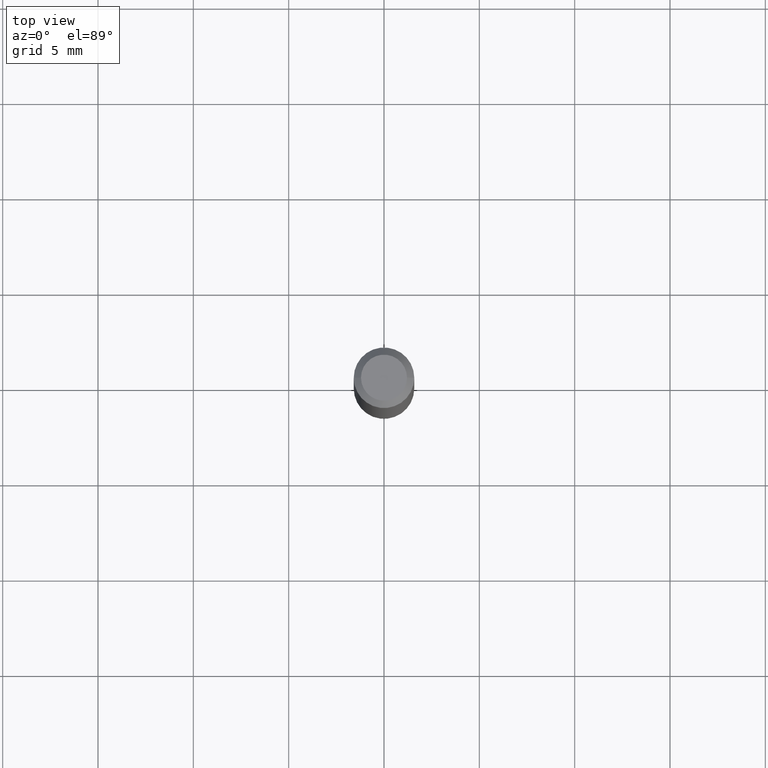
[diagram: clean part render]
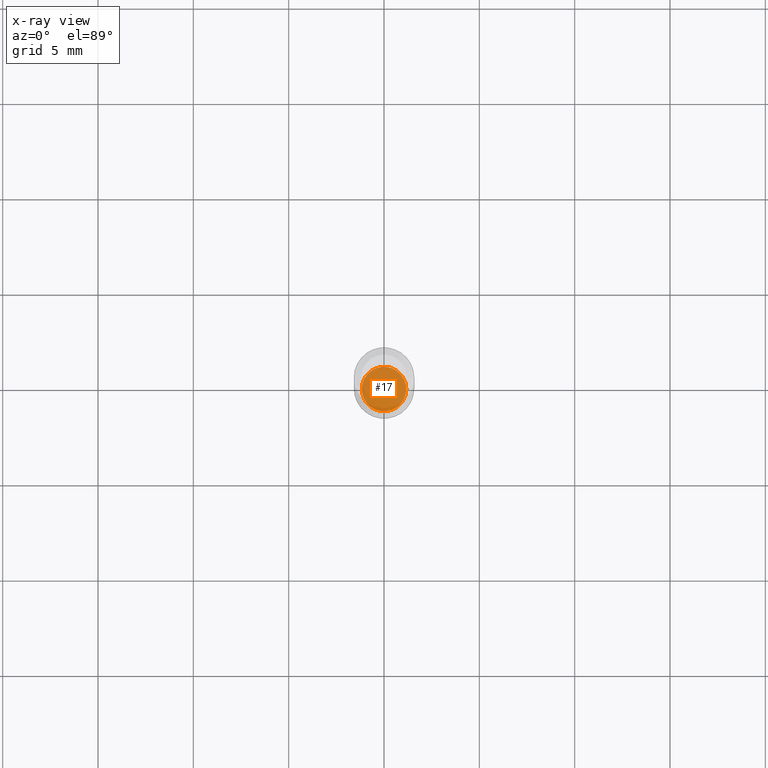
[diagram: x-ray — body ghosted, one internal face saturated and labeled with its STEP entity id]
A machine part, top view, then the same camera in x-ray: the body is ghosted and one INTERNAL B-rep face — a face not visible from any outside direction — is saturated and labeled: STEP entity #17.
In plain terms, the highlighted planar face has unit normal (-0, 0, 1).
Its self-contained STEP definition (entity closure, byte-faithful):
#17 = ADVANCED_FACE ( 'NONE', ( #68 ), #166, .F. ) ;
#40 = DIRECTION ( 'NONE',  ( -2.438088387897960049E-29, 3.491481338843145188E-15, 1.000000000000000000 ) ) ;
#68 = FACE_OUTER_BOUND ( 'NONE', #176, .T. ) ;
#100 = DIRECTION ( 'NONE',  ( 1.000000000000000000, -6.982962677686269866E-15, 0.000000000000000000 ) ) ;
#102 = AXIS2_PLACEMENT_3D ( 'NONE', #425, #40, #348 ) ;
#147 = CIRCLE ( 'NONE', #195, 0.04599999999999999922 ) ;
#158 = EDGE_CURVE ( 'NONE', #406, #185, #147, .T. ) ;
#166 = PLANE ( 'NONE',  #102 ) ;
#167 = CARTESIAN_POINT ( 'NONE',  ( -0.04599999999999999922, -4.418915735202923035E-15, -1.360000000000000320 ) ) ;
#176 = EDGE_LOOP ( 'NONE', ( #284, #205 ) ) ;
#185 = VERTEX_POINT ( 'NONE', #167 ) ;
#195 = AXIS2_PLACEMENT_3D ( 'NONE', #352, #358, #244 ) ;
#205 = ORIENTED_EDGE ( 'NONE', *, *, #465, .F. ) ;
#217 = CARTESIAN_POINT ( 'NONE',  ( 3.325837576411786624E-29, -4.748414620826679034E-15, -1.360000000000000320 ) ) ;
#244 = DIRECTION ( 'NONE',  ( 1.000000000000000000, -6.982962677686269866E-15, 0.000000000000000000 ) ) ;
#284 = ORIENTED_EDGE ( 'NONE', *, *, #158, .F. ) ;
#328 = CARTESIAN_POINT ( 'NONE',  ( 0.04599999999999999922, -5.069630904000247523E-15, -1.360000000000000320 ) ) ;
#340 = AXIS2_PLACEMENT_3D ( 'NONE', #217, #454, #100 ) ;
#348 = DIRECTION ( 'NONE',  ( 1.000000000000000000, -6.982962677686265922E-15, 4.876176775795935793E-29 ) ) ;
#352 = CARTESIAN_POINT ( 'NONE',  ( 3.325837576411786624E-29, -4.748414620826679034E-15, -1.360000000000000320 ) ) ;
#358 = DIRECTION ( 'NONE',  ( -2.445468806185136597E-29, 3.491481338843145583E-15, 1.000000000000000000 ) ) ;
#366 = CIRCLE ( 'NONE', #340, 0.04599999999999999922 ) ;
#406 = VERTEX_POINT ( 'NONE', #328 ) ;
#425 = CARTESIAN_POINT ( 'NONE',  ( 3.325837576411786624E-29, -4.748414620826679034E-15, -1.360000000000000320 ) ) ;
#454 = DIRECTION ( 'NONE',  ( -2.445468806185136597E-29, 3.491481338843145583E-15, 1.000000000000000000 ) ) ;
#465 = EDGE_CURVE ( 'NONE', #185, #406, #366, .T. ) ;